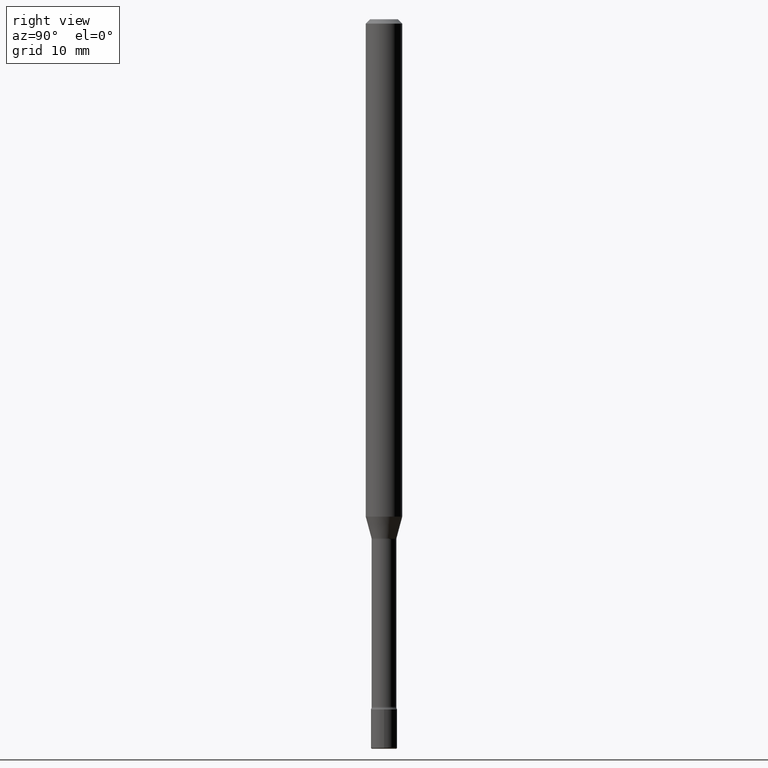
[diagram: clean part render]
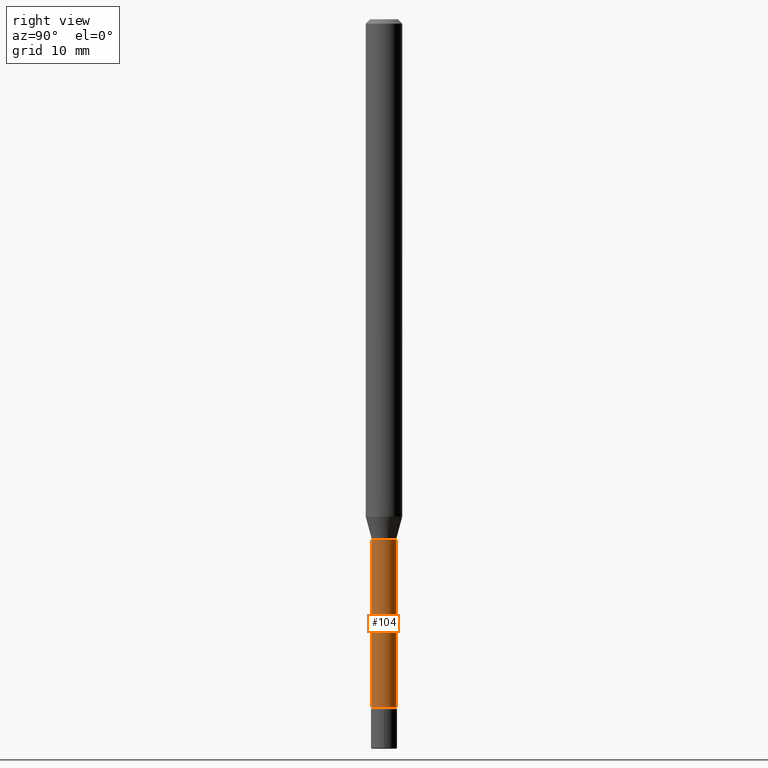
[diagram: same view with one face highlighted and labeled with its STEP entity id]
A machine part, right view. The second image highlights one B-rep face of the part: STEP entity #104.
In plain terms, the highlighted cylindrical surface (edge-blend (fillet) strip) has radius 1.0744 mm, axis along (-0, 0, 1).
Its self-contained STEP definition (entity closure, byte-faithful):
#20 = EDGE_CURVE ( 'NONE', #83, #263, #89, .T. ) ;
#22 = CIRCLE ( 'NONE', #303, 0.04229999999999999732 ) ;
#37 = ORIENTED_EDGE ( 'NONE', *, *, #429, .T. ) ;
#43 = CARTESIAN_POINT ( 'NONE',  ( -2.953793212661290535E-16, -0.04229999999999999732, 6.257699263891009512E-16 ) ) ;
#45 = DIRECTION ( 'NONE',  ( -6.982962677686265133E-15, -1.000000000000000000, 6.458269488567996591E-15 ) ) ;
#60 = VECTOR ( 'NONE', #148, 39.37007874015748143 ) ;
#65 = EDGE_CURVE ( 'NONE', #269, #490, #22, .T. ) ;
#83 = VERTEX_POINT ( 'NONE', #359 ) ;
#89 = CIRCLE ( 'NONE', #161, 0.04230000000000001120 ) ;
#104 = ADVANCED_FACE ( 'NONE', ( #311 ), #352, .T. ) ;
#105 = ORIENTED_EDGE ( 'NONE', *, *, #551, .F. ) ;
#136 = DIRECTION ( 'NONE',  ( -2.445355446703953584E-29, 3.491643676072220337E-15, 1.000000000000000000 ) ) ;
#148 = DIRECTION ( 'NONE',  ( -2.445355446703953584E-29, 3.491643676072220337E-15, 1.000000000000000000 ) ) ;
#161 = AXIS2_PLACEMENT_3D ( 'NONE', #495, #448, #45 ) ;
#179 = CARTESIAN_POINT ( 'NONE',  ( -2.953793212660714173E-16, -0.04230000000000822685, -2.356414547187247077 ) ) ;
#188 = DIRECTION ( 'NONE',  ( -2.445355446703953584E-29, 3.491643676072220337E-15, 1.000000000000000000 ) ) ;
#193 = DIRECTION ( 'NONE',  ( -6.982962677686266711E-15, -1.000000000000000000, 6.458269488567998169E-15 ) ) ;
#194 = LINE ( 'NONE', #536, #60 ) ;
#226 = DIRECTION ( 'NONE',  ( -2.445355446703953584E-29, 3.491643676072220337E-15, 1.000000000000000000 ) ) ;
#263 = VERTEX_POINT ( 'NONE', #418 ) ;
#269 = VERTEX_POINT ( 'NONE', #179 ) ;
#286 = ORIENTED_EDGE ( 'NONE', *, *, #20, .F. ) ;
#296 = VECTOR ( 'NONE', #188, 39.37007874015748143 ) ;
#299 = EDGE_LOOP ( 'NONE', ( #414, #37, #286, #105 ) ) ;
#303 = AXIS2_PLACEMENT_3D ( 'NONE', #322, #136, #193 ) ;
#311 = FACE_OUTER_BOUND ( 'NONE', #299, .T. ) ;
#319 = CARTESIAN_POINT ( 'NONE',  ( -1.169113584055446105E-44, 1.669184350826100908E-30, 4.780733988912460139E-16 ) ) ;
#322 = CARTESIAN_POINT ( 'NONE',  ( 5.762271147656765204E-29, -8.227759951890936880E-15, -2.356414547187247077 ) ) ;
#352 = CYLINDRICAL_SURFACE ( 'NONE', #566, 0.04229999999999999732 ) ;
#359 = CARTESIAN_POINT ( 'NONE',  ( -2.953793212660855675E-16, -0.04230000000000623539, -1.781974787463810994 ) ) ;
#402 = DIRECTION ( 'NONE',  ( -6.982962677686266711E-15, -1.000000000000000000, 3.491643676072218759E-15 ) ) ;
#414 = ORIENTED_EDGE ( 'NONE', *, *, #65, .T. ) ;
#418 = CARTESIAN_POINT ( 'NONE',  ( 3.005595772265800451E-16, 0.04229999999999378701, -1.781974787463811438 ) ) ;
#429 = EDGE_CURVE ( 'NONE', #490, #263, #194, .T. ) ;
#437 = LINE ( 'NONE', #43, #296 ) ;
#448 = DIRECTION ( 'NONE',  ( -2.445355446703953584E-29, 3.491643676072220337E-15, 1.000000000000000000 ) ) ;
#449 = CARTESIAN_POINT ( 'NONE',  ( 3.101519041593414751E-16, 0.04229999999999176780, -2.356414547187247521 ) ) ;
#490 = VERTEX_POINT ( 'NONE', #449 ) ;
#495 = CARTESIAN_POINT ( 'NONE',  ( 4.357561752413750635E-29, -6.222020997568155509E-15, -1.781974787463811216 ) ) ;
#536 = CARTESIAN_POINT ( 'NONE',  ( 3.005595772265223103E-16, 0.04229999999999999732, 3.303768713933911753E-16 ) ) ;
#551 = EDGE_CURVE ( 'NONE', #269, #83, #437, .T. ) ;
#566 = AXIS2_PLACEMENT_3D ( 'NONE', #319, #226, #402 ) ;